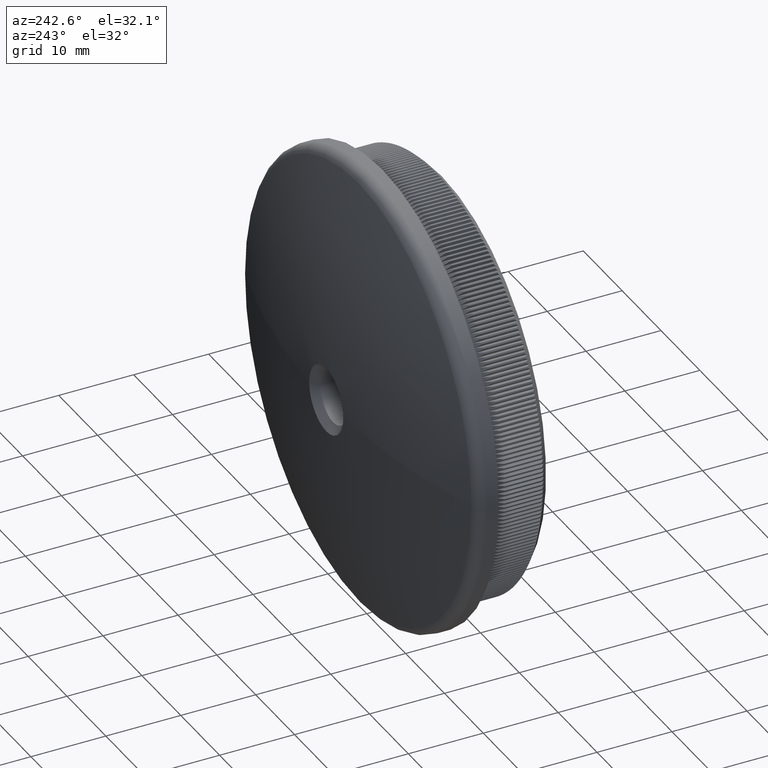
[diagram: clean part render]
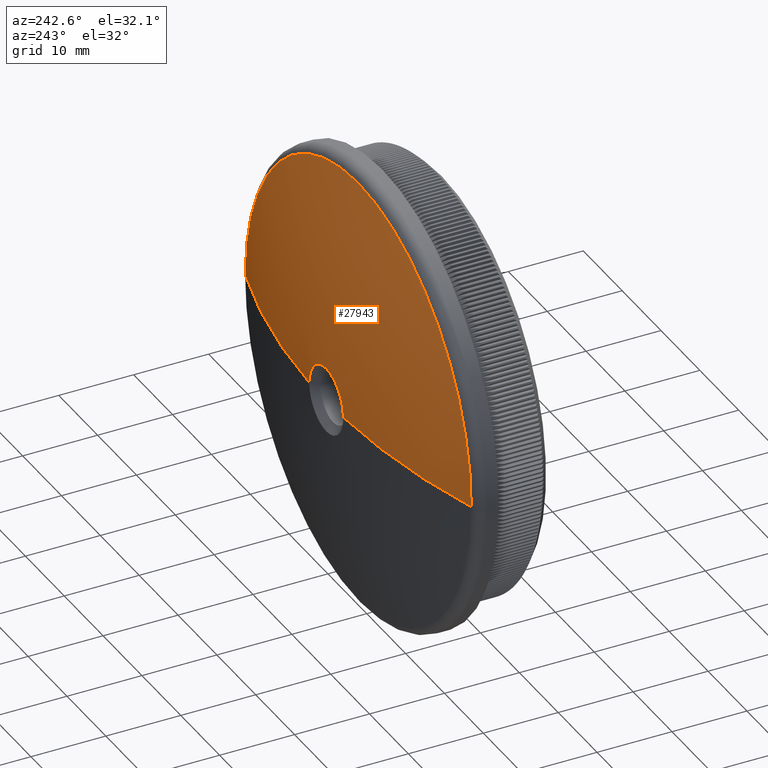
[diagram: same view with one face highlighted and labeled with its STEP entity id]
A machine part, auxiliary view. The second image highlights one B-rep face of the part: STEP entity #27943.
In plain terms, the highlighted spherical surface has radius 99.0545 mm.
Its self-contained STEP definition (entity closure, byte-faithful):
#113 = DIRECTION ( 'NONE',  ( 0.0000000000000000000, 0.0000000000000000000, -1.000000000000000000 ) ) ;
#2300 = CIRCLE ( 'NONE', #32119, 29.09052289363558300 ) ;
#4524 = DIRECTION ( 'NONE',  ( 0.0000000000000000000, 0.0000000000000000000, -1.000000000000000000 ) ) ;
#6359 = DIRECTION ( 'NONE',  ( 1.000000000000000000, 0.0000000000000000000, -1.224646799147353200E-016 ) ) ;
#6971 = CARTESIAN_POINT ( 'NONE',  ( 0.0000000000000000000, -83.55452127659596300, 0.0000000000000000000 ) ) ;
#7038 = AXIS2_PLACEMENT_3D ( 'NONE', #37403, #34649, #27265 ) ;
#8822 = VERTEX_POINT ( 'NONE', #16253 ) ;
#9110 = CARTESIAN_POINT ( 'NONE',  ( 0.0000000000000000000, 15.40248352619531900, 0.0000000000000000000 ) ) ;
#10569 = ORIENTED_EDGE ( 'NONE', *, *, #41463, .T. ) ;
#10990 = DIRECTION ( 'NONE',  ( 0.0000000000000000000, 0.0000000000000000000, 1.000000000000000000 ) ) ;
#11144 = DIRECTION ( 'NONE',  ( 1.000000000000000000, 0.0000000000000000000, 0.0000000000000000000 ) ) ;
#11299 = CARTESIAN_POINT ( 'NONE',  ( 0.0000000000000000000, -83.55452127659596300, 0.0000000000000000000 ) ) ;
#12793 = VERTEX_POINT ( 'NONE', #33042 ) ;
#14971 = ORIENTED_EDGE ( 'NONE', *, *, #43289, .T. ) ;
#15459 = CARTESIAN_POINT ( 'NONE',  ( 0.0000000000000000000, 15.40248352619531900, 4.394244621768480700 ) ) ;
#15784 = EDGE_CURVE ( 'NONE', #44809, #25221, #35427, .T. ) ;
#16111 = CIRCLE ( 'NONE', #39837, 29.09052289363558300 ) ;
#16253 = CARTESIAN_POINT ( 'NONE',  ( -29.09052289363556200, 11.13201241806661200, 3.562561574721359900E-015 ) ) ;
#16667 = EDGE_CURVE ( 'NONE', #8822, #28328, #2300, .T. ) ;
#17835 = DIRECTION ( 'NONE',  ( 0.0000000000000000000, 0.0000000000000000000, -1.000000000000000000 ) ) ;
#18288 = CARTESIAN_POINT ( 'NONE',  ( 0.0000000000000000000, -83.55452127659596300, 0.0000000000000000000 ) ) ;
#18630 = CARTESIAN_POINT ( 'NONE',  ( -4.394244621768513600, 15.40248352619531900, 2.050350667896643000E-015 ) ) ;
#19602 = VERTEX_POINT ( 'NONE', #21365 ) ;
#19814 = EDGE_CURVE ( 'NONE', #28328, #19602, #16111, .T. ) ;
#20116 = AXIS2_PLACEMENT_3D ( 'NONE', #11299, #10990, #11144 ) ;
#20244 = ORIENTED_EDGE ( 'NONE', *, *, #44301, .F. ) ;
#21189 = DIRECTION ( 'NONE',  ( 0.0000000000000000000, 1.000000000000000000, 0.0000000000000000000 ) ) ;
#21365 = CARTESIAN_POINT ( 'NONE',  ( 29.09052289363556200, 11.13201241806661200, 0.0000000000000000000 ) ) ;
#21533 = DIRECTION ( 'NONE',  ( 0.0000000000000000000, 0.0000000000000000000, -1.000000000000000000 ) ) ;
#22178 = ORIENTED_EDGE ( 'NONE', *, *, #19814, .T. ) ;
#24382 = AXIS2_PLACEMENT_3D ( 'NONE', #6971, #45141, #6359 ) ;
#25221 = VERTEX_POINT ( 'NONE', #18630 ) ;
#27040 = CARTESIAN_POINT ( 'NONE',  ( 3.627435837075316700E-015, 11.13201241806661900, 29.09052289363558300 ) ) ;
#27265 = DIRECTION ( 'NONE',  ( 0.0000000000000000000, 0.0000000000000000000, -1.000000000000000000 ) ) ;
#27305 = ORIENTED_EDGE ( 'NONE', *, *, #16667, .T. ) ;
#27943 = ADVANCED_FACE ( 'NONE', ( #41033 ), #37196, .T. ) ;
#28328 = VERTEX_POINT ( 'NONE', #27040 ) ;
#29452 = CARTESIAN_POINT ( 'NONE',  ( 0.0000000000000000000, 11.13201241806661900, 0.0000000000000000000 ) ) ;
#31122 = AXIS2_PLACEMENT_3D ( 'NONE', #9110, #42007, #21533 ) ;
#32119 = AXIS2_PLACEMENT_3D ( 'NONE', #29452, #39317, #4524 ) ;
#32495 = CIRCLE ( 'NONE', #24382, 99.05452127659596300 ) ;
#32625 = CIRCLE ( 'NONE', #31122, 4.394244621768513600 ) ;
#33042 = CARTESIAN_POINT ( 'NONE',  ( 4.394244621768513600, 15.40248352619531900, 0.0000000000000000000 ) ) ;
#34129 = CIRCLE ( 'NONE', #44448, 99.05452127659596300 ) ;
#34649 = DIRECTION ( 'NONE',  ( -0.0000000000000000000, -1.000000000000000000, -0.0000000000000000000 ) ) ;
#35427 = CIRCLE ( 'NONE', #7038, 4.394244621768513600 ) ;
#36010 = EDGE_LOOP ( 'NONE', ( #10569, #38326, #14971, #27305, #22178, #20244 ) ) ;
#37196 = SPHERICAL_SURFACE ( 'NONE', #20116, 99.05452127659596300 ) ;
#37403 = CARTESIAN_POINT ( 'NONE',  ( 0.0000000000000000000, 15.40248352619531900, 0.0000000000000000000 ) ) ;
#38326 = ORIENTED_EDGE ( 'NONE', *, *, #15784, .T. ) ;
#39317 = DIRECTION ( 'NONE',  ( 0.0000000000000000000, 1.000000000000000000, 0.0000000000000000000 ) ) ;
#39837 = AXIS2_PLACEMENT_3D ( 'NONE', #41960, #21189, #113 ) ;
#41033 = FACE_OUTER_BOUND ( 'NONE', #36010, .T. ) ;
#41463 = EDGE_CURVE ( 'NONE', #12793, #44809, #32625, .T. ) ;
#41960 = CARTESIAN_POINT ( 'NONE',  ( 0.0000000000000000000, 11.13201241806661900, 0.0000000000000000000 ) ) ;
#42007 = DIRECTION ( 'NONE',  ( -0.0000000000000000000, -1.000000000000000000, -0.0000000000000000000 ) ) ;
#42432 = DIRECTION ( 'NONE',  ( -1.000000000000000000, 0.0000000000000000000, 0.0000000000000000000 ) ) ;
#43289 = EDGE_CURVE ( 'NONE', #25221, #8822, #32495, .T. ) ;
#44301 = EDGE_CURVE ( 'NONE', #12793, #19602, #34129, .T. ) ;
#44448 = AXIS2_PLACEMENT_3D ( 'NONE', #18288, #17835, #42432 ) ;
#44809 = VERTEX_POINT ( 'NONE', #15459 ) ;
#45141 = DIRECTION ( 'NONE',  ( 1.224646799147353200E-016, -0.0000000000000000000, 1.000000000000000000 ) ) ;